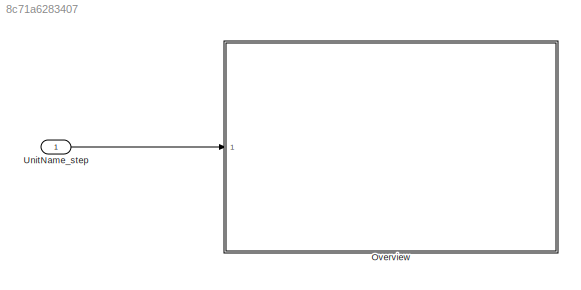
MODEL slx_8c71a6283407
KIND model
CONFIG AbsTol = auto
CONFIG EnableMultiTasking = off
CONFIG FixedStep = 0.001
CONFIG MaxStep = auto
CONFIG MinStep = auto
CONFIG RelTol = 1e-3
CONFIG SampleTimeConstraint = Unconstrained
CONFIG Solver = FixedStepDiscrete
CONFIG SolverName = FixedStepDiscrete
CONFIG StartTime = 0.0
CONFIG StopTime = Inf
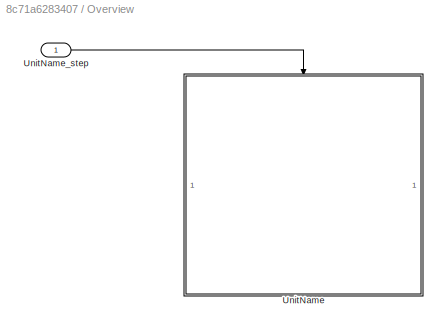
BLOCK [SubSystem] Overview
  Ports = [1]
  RequestExecContextInheritance = off
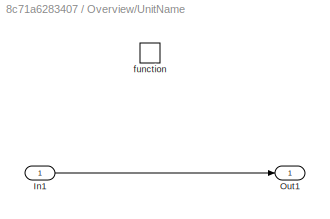
BLOCK [SubSystem] Overview/UnitName
  Ports = [1, 1, 0, 1]
  RequestExecContextInheritance = off
  TreatAsAtomicUnit = on
BLOCK [Inport] Overview/UnitName/In1
  IconDisplay = Port number
BLOCK [Outport] Overview/UnitName/Out1
  IconDisplay = Port number
BLOCK [TriggerPort] Overview/UnitName/function
  Ports = []
  StatesWhenEnabling = held
  TriggerType = function-call
  VariantControl = Variant
BLOCK [Inport] Overview/UnitName_step
  IconDisplay = Port number
BLOCK [Inport] UnitName_step
  IconDisplay = Port number
  OutputFunctionCall = on
LINE Overview/UnitName/In1:1 -> Overview/UnitName/Out1:1
LINE Overview/UnitName_step:1 -> Overview/UnitName:trigger
LINE UnitName_step:1 -> Overview:1
